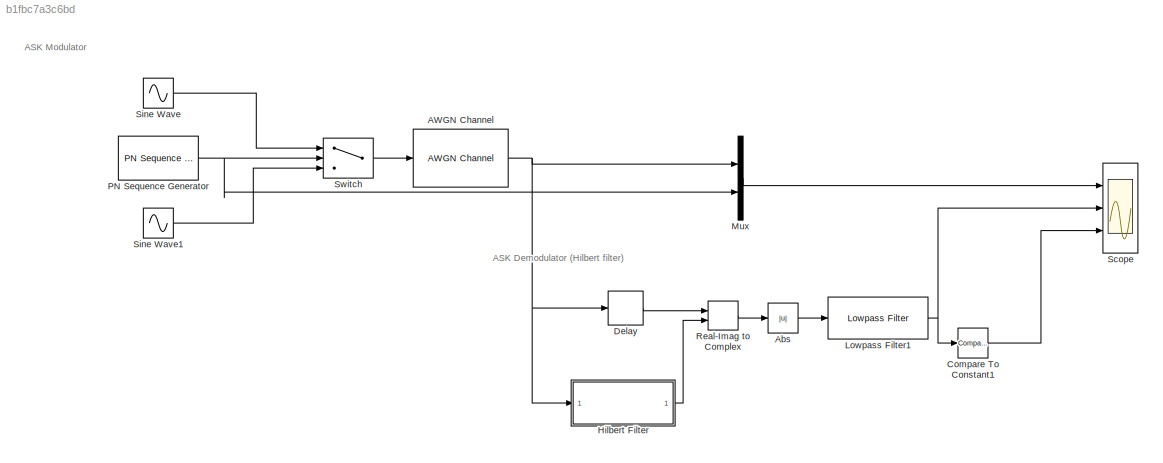
MODEL slx_b1fbc7a3c6bd
KIND model
CONFIG AbsTol = auto
CONFIG EnableMultiTasking = off
CONFIG FixedStep = auto
CONFIG MaxStep = auto
CONFIG MinStep = auto
CONFIG RelTol = 1e-3
CONFIG SampleTimeConstraint = Unconstrained
CONFIG Solver = VariableStepAuto
CONFIG SolverName = VariableStepAuto
CONFIG StartTime = 0.0
CONFIG StopTime = 10
BLOCK [Reference] AWGN Channel  REF=commchan3/AWGN
Channel
  Ports = [1, 1]
  SourceBlock = commchan3/AWGN\nChannel
  SourceProductBaseCode = CM
  SourceType = AWGN Channel
  UserDataPersistent = on
BLOCK [Abs] Abs
  SaturateOnIntegerOverflow = off
BLOCK [Reference] Compare To Constant1  REF=simulink/Logic and Bit
Operations/Compare
To Constant
  Ports = [1, 1]
  SourceBlock = simulink/Logic and Bit\nOperations/Compare\nTo Constant
  SourceProductBaseCode = SL
  SourceType = Compare To Constant
BLOCK [Delay] Delay
  DelayLength = 1
  InitialCondition = 0
  InputPortMap = u0
  Ports = [1, 1]
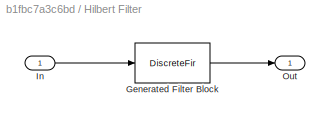
BLOCK [SubSystem] Hilbert Filter
  CopyFcn = fdesignblkfcn(gcbh, {'CopyFcn'});
  DialogController = fdesignblkfcn
  InitFcn = fdesignblkfcn(gcbh, {'InitFcn'});
  Ports = [1, 1]
  RequestExecContextInheritance = off
  UserDataPersistent = on
BLOCK [DiscreteFir] Hilbert Filter/Generated Filter Block
  Coefficients = [-0.026449858259791379 -0.00578355491829027 -0.016572261903348456 -0.0095390561131982743 -0.022461390535071568 -0.014999256435125952 -0.030323967074738556 -0.023012528163449009 -0.041429315821655127 -0.035762828939278346 -0.05911752381753177 -0.059034685410808696 -0.094459906652176406 -0.11739830204172252 -0.21797718993610349 -0.62869353747279177 0.62869353747279177 0.21797718993610349 0.117398302...<+281ch>
  InputPortMap = u0
  InputProcessing = Columns as channels (frame based)
  OutputPortMap = o0
  Ports = [1, 1]
  Tag = BlockMethodSubSystem
BLOCK [Inport] Hilbert Filter/In
BLOCK [Outport] Hilbert Filter/Out
  VectorParamsAs1DForOutWhenUnconnected = off
BLOCK [Reference] Lowpass Filter1  REF=dspfdesign/Lowpass Filter
  Ports = [1, 1]
  SourceBlock = dspfdesign/Lowpass Filter
  SourceProductBaseCode = DS
  SourceType = dsp.LowpassFilter
BLOCK [Mux] Mux
  DisplayOption = bar
  Inputs = 2
  Ports = [2, 1]
BLOCK [Reference] PN Sequence Generator  REF=commseqgen3/PN Sequence
Generator
  Ports = [0, 1]
  SourceBlock = commseqgen3/PN Sequence\nGenerator
  SourceProductBaseCode = CM
  SourceType = PN Sequence Generator
BLOCK [RealImagToComplex] Real-Imag to Complex
  Ports = [2, 1]
BLOCK [Scope] Scope
  Floating = off
  NumInputPorts = 3
  Ports = [3]
  ScopeSpecificationString = Simulink.scopes.TimeScopeBlockCfg('CurrentConfiguration', extmgr.ConfigurationSet(extmgr.Configuration('Core','General UI',true,'FigureColor',[0 0 0]),extmgr.Configuration('Core','Source UI',true),extmgr.Configuration('Sources','WiredSimulink',true),extmgr.Configuration('Visuals','Time Domain',true,'SerializedDisplays',{struct('MinYLimReal','-1.47575','MaxYLimReal','1.479','YLabelReal','','MinYLim...<+3394ch>
BLOCK [Sin] Sine Wave
  Frequency = 2*pi*10
  Ports = [0, 1]
  SampleTime = 0.001
BLOCK [Sin] Sine Wave1
  Amplitude = 0.1
  Frequency = 2*pi*10
  Ports = [0, 1]
  SampleTime = 0.001
BLOCK [Switch] Switch
  Criteria = u2 > Threshold
  InputSameDT = off
  SaturateOnIntegerOverflow = off
  Threshold = 0.5
ANNOTATION (root): ASK Demodulator (Hilbert filter)
ANNOTATION (root): ASK Modulator
NET AWGN Channel:1 -> Delay:1, Hilbert Filter:1, Mux:1
LINE Abs:1 -> Lowpass Filter1:1
LINE Compare To Constant1:1 -> Scope:3
LINE Delay:1 -> Real-Imag to Complex:1
LINE Hilbert Filter:1 -> Real-Imag to Complex:2
NET Lowpass Filter1:1 -> Compare To Constant1:1, Scope:2
LINE Mux:1 -> Scope:1
NET PN Sequence Generator:1 -> Mux:2, Switch:2
LINE Real-Imag to Complex:1 -> Abs:1
LINE Sine Wave1:1 -> Switch:3
LINE Sine Wave:1 -> Switch:1
LINE Switch:1 -> AWGN Channel:1
note: NET lines group one-source signal fan-out (src -> all destinations, sorted); 1:1 wires keep LINE
